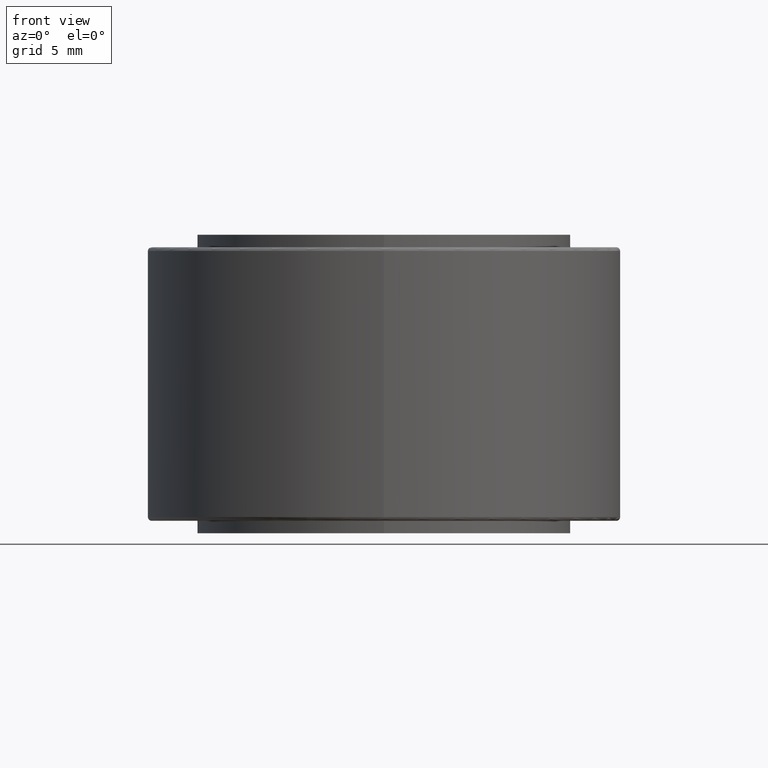
[diagram: clean part render]
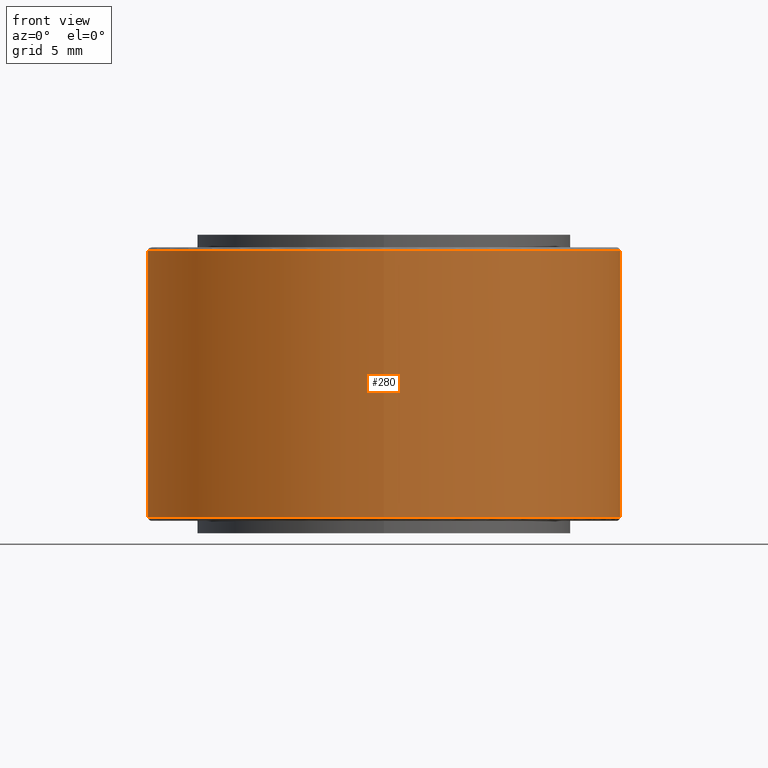
[diagram: same view with one face highlighted and labeled with its STEP entity id]
A machine part, front view. The second image highlights one B-rep face of the part: STEP entity #280.
In plain terms, the highlighted cylindrical surface (bore or boss wall) has radius 9.5 mm, axis along (0, 0, -1).
Its self-contained STEP definition (entity closure, byte-faithful):
#22=LINE('',#511,#30);
#30=VECTOR('',#417,9.5);
#38=CYLINDRICAL_SURFACE('',#337,9.5);
#68=FACE_OUTER_BOUND('',#92,.T.);
#92=EDGE_LOOP('',(#225,#226,#227,#228,#229,#230));
#118=CIRCLE('',#334,9.5);
#119=CIRCLE('',#335,9.5);
#121=CIRCLE('',#338,9.5);
#122=CIRCLE('',#339,9.5);
#145=VERTEX_POINT('',#502);
#146=VERTEX_POINT('',#503);
#147=VERTEX_POINT('',#508);
#148=VERTEX_POINT('',#509);
#173=EDGE_CURVE('',#145,#146,#118,.T.);
#174=EDGE_CURVE('',#146,#145,#119,.T.);
#176=EDGE_CURVE('',#147,#148,#121,.T.);
#177=EDGE_CURVE('',#147,#145,#22,.T.);
#178=EDGE_CURVE('',#148,#147,#122,.T.);
#225=ORIENTED_EDGE('',*,*,#176,.F.);
#226=ORIENTED_EDGE('',*,*,#177,.T.);
#227=ORIENTED_EDGE('',*,*,#173,.T.);
#228=ORIENTED_EDGE('',*,*,#174,.T.);
#229=ORIENTED_EDGE('',*,*,#177,.F.);
#230=ORIENTED_EDGE('',*,*,#178,.F.);
#280=ADVANCED_FACE('',(#68),#38,.T.);
#334=AXIS2_PLACEMENT_3D('',#504,#407,#408);
#335=AXIS2_PLACEMENT_3D('',#505,#409,#410);
#337=AXIS2_PLACEMENT_3D('',#507,#413,#414);
#338=AXIS2_PLACEMENT_3D('',#510,#415,#416);
#339=AXIS2_PLACEMENT_3D('',#512,#418,#419);
#407=DIRECTION('center_axis',(0.,3.06161699786839E-16,-1.));
#408=DIRECTION('ref_axis',(1.,0.,0.));
#409=DIRECTION('center_axis',(0.,3.06161699786839E-16,-1.));
#410=DIRECTION('ref_axis',(1.,0.,0.));
#413=DIRECTION('center_axis',(0.,3.06161699786839E-16,-1.));
#414=DIRECTION('ref_axis',(0.,1.,3.70074341541719E-16));
#415=DIRECTION('center_axis',(0.,3.06161699786839E-16,-1.));
#416=DIRECTION('ref_axis',(1.,0.,0.));
#417=DIRECTION('',(0.,-3.06161699786839E-16,1.));
#418=DIRECTION('center_axis',(0.,3.06161699786839E-16,-1.));
#419=DIRECTION('ref_axis',(1.,0.,0.));
#502=CARTESIAN_POINT('',(-1.16341445918999E-15,-9.5,5.35));
#503=CARTESIAN_POINT('',(9.5,-3.94446036137988E-15,5.35));
#504=CARTESIAN_POINT('Origin',(0.,-2.78104590218989E-15,5.35));
#505=CARTESIAN_POINT('Origin',(0.,-2.78104590218989E-15,5.35));
#507=CARTESIAN_POINT('Origin',(0.,-1.14308080833031E-15,-2.91433543964104E-15));
#508=CARTESIAN_POINT('',(-1.16341445918999E-15,-9.5,-5.35));
#509=CARTESIAN_POINT('',(9.5,-6.68530173660706E-16,-5.35));
#510=CARTESIAN_POINT('Origin',(0.,4.94884285529279E-16,-5.35));
#511=CARTESIAN_POINT('',(-1.16341445918999E-15,-9.5,-6.43004168428737E-15));
#512=CARTESIAN_POINT('Origin',(0.,4.94884285529279E-16,-5.35));